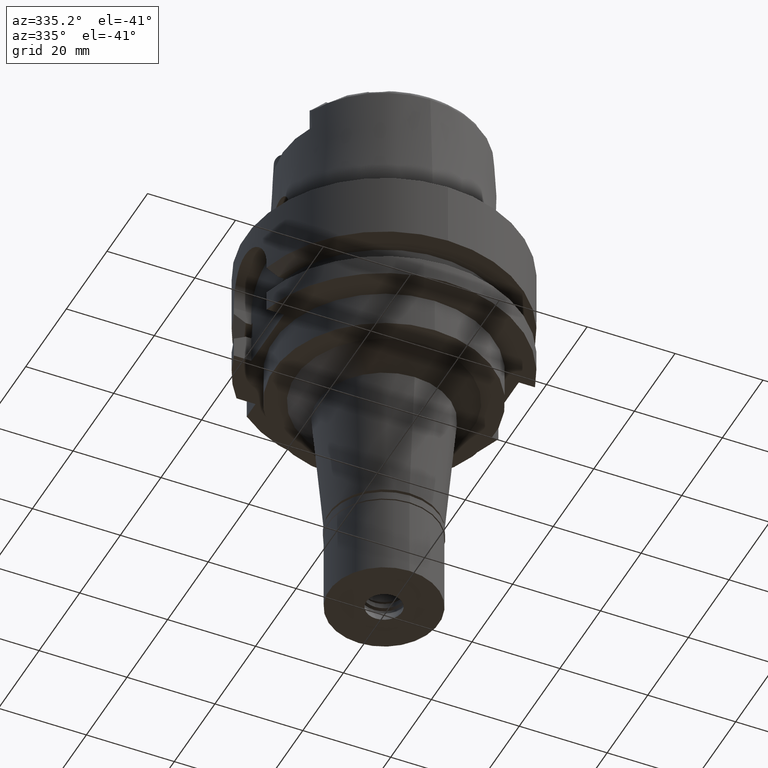
[diagram: clean part render]
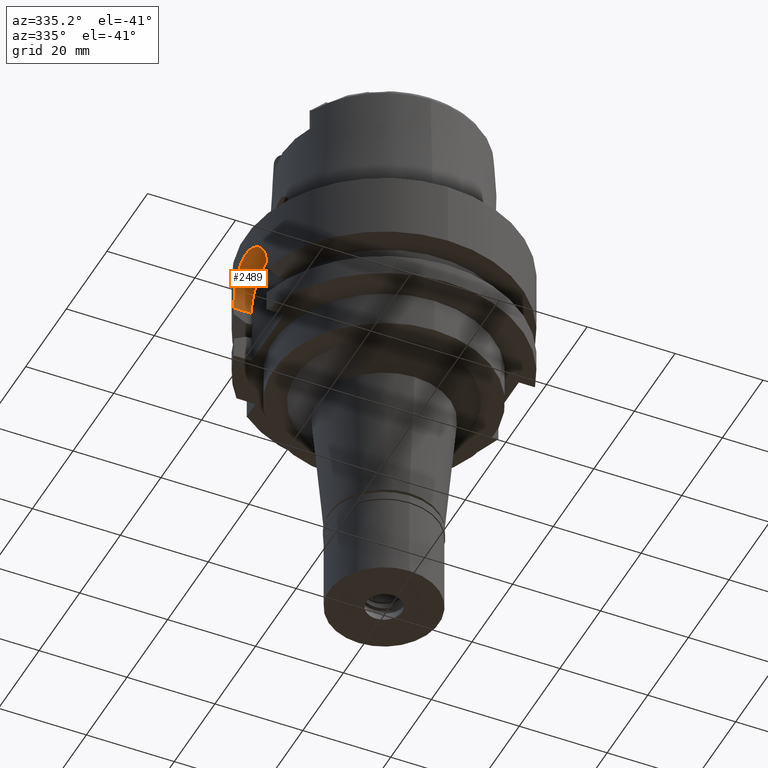
[diagram: same view with one face highlighted and labeled with its STEP entity id]
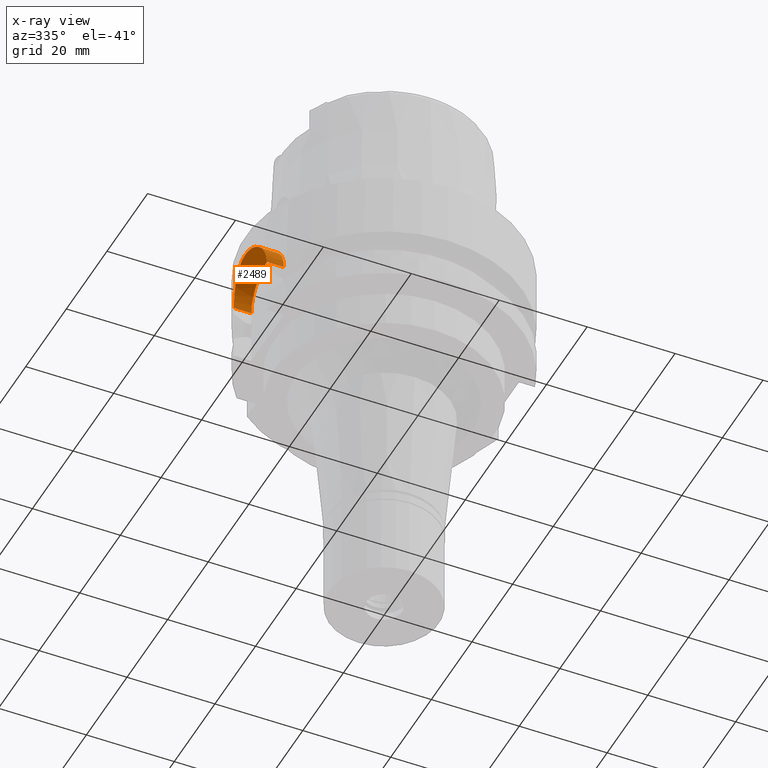
[diagram: x-ray of the same camera — body ghosted, the highlighted face saturated]
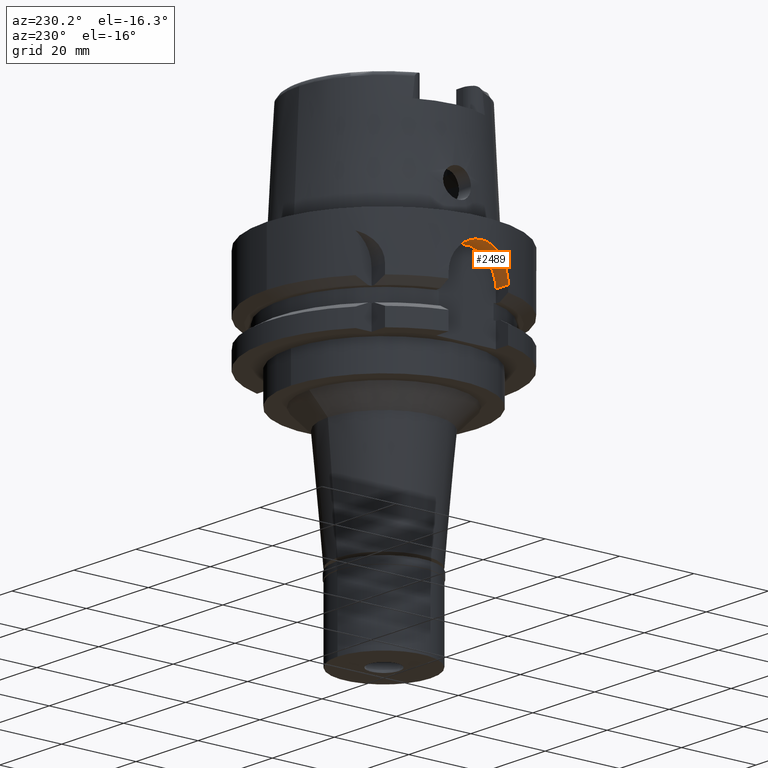
[diagram: same view with one face highlighted and labeled with its STEP entity id]
A machine part, auxiliary view. The second image highlights one B-rep face of the part: STEP entity #2489.
The next image is the same camera in x-ray: the body ghosted, the highlighted face saturated — about 0% of this face is hidden behind the body in this view.
A second angle (auxiliary view) of the same face is appended — the face is thin or edge-on in the first view.
In plain terms, the highlighted cylindrical surface (partial cylindrical patch) has radius 8 mm, axis along (1, 0, 0).
Its self-contained STEP definition (entity closure, byte-faithful):
#18 = DIRECTION ( 'NONE',  ( 0.0000000000000000000, 1.000000000000000000, 0.0000000000000000000 ) ) ;
#108 = CARTESIAN_POINT ( 'NONE',  ( -31.20241978222286505, -4.321057623402265513, -6.266097873782154437 ) ) ;
#138 = CARTESIAN_POINT ( 'NONE',  ( -31.26152885555568517, -3.870459631734697759, -5.997300790415237337 ) ) ;
#173 = DIRECTION ( 'NONE',  ( -1.000000000000000000, 8.776122650820999714E-14, 0.0000000000000000000 ) ) ;
#234 = CARTESIAN_POINT ( 'NONE',  ( -30.46719547316000032, -8.000000000000000000, -13.00000000000000000 ) ) ;
#369 = EDGE_CURVE ( 'NONE', #4057, #5040, #1305, .T. ) ;
#391 = VERTEX_POINT ( 'NONE', #1832 ) ;
#513 = CARTESIAN_POINT ( 'NONE',  ( -30.85175722333923787, 6.359895374914876776, -8.139646148475570442 ) ) ;
#534 = CARTESIAN_POINT ( 'NONE',  ( -31.02184408994428821, -5.471005329722204991, -7.157139608586096102 ) ) ;
#567 = CARTESIAN_POINT ( 'NONE',  ( -30.85032093071376735, -6.371617778921378594, -8.133432859172732066 ) ) ;
#615 = LINE ( 'NONE', #965, #5003 ) ;
#627 = CARTESIAN_POINT ( 'NONE',  ( -31.36478180881586297, -2.918134935663077911, -5.550077343907257266 ) ) ;
#639 = ORIENTED_EDGE ( 'NONE', *, *, #369, .T. ) ;
#655 = CARTESIAN_POINT ( 'NONE',  ( -30.46719547316000032, -8.000000000000000000, -13.00000000000000000 ) ) ;
#666 = LINE ( 'NONE', #234, #2584 ) ;
#795 = CARTESIAN_POINT ( 'NONE',  ( -26.50000000000000000, -8.000000000000000000, -13.00000000000000000 ) ) ;
#842 = CARTESIAN_POINT ( 'NONE',  ( -31.10597520402361837, 4.967801513785830458, -6.727898206207118648 ) ) ;
#919 = CARTESIAN_POINT ( 'NONE',  ( -30.59375341722014241, 7.502186701450398232, -10.20961224725754768 ) ) ;
#944 = AXIS2_PLACEMENT_3D ( 'NONE', #2185, #3915, #18 ) ;
#965 = CARTESIAN_POINT ( 'NONE',  ( -26.50000000000000000, 8.000000000000000000, -13.00000000000000000 ) ) ;
#977 = CARTESIAN_POINT ( 'NONE',  ( -30.91857264590933241, -6.036448109134066264, -7.723297038441890194 ) ) ;
#998 = CARTESIAN_POINT ( 'NONE',  ( -31.05571261456162802, -5.275953089349791902, -6.980406702709331945 ) ) ;
#1023 = CARTESIAN_POINT ( 'NONE',  ( -31.30329594184335562, -3.522533146456673148, -5.812390860449021979 ) ) ;
#1054 = CARTESIAN_POINT ( 'NONE',  ( -31.42616244446166363, -2.180633170701511858, -5.295127870797712077 ) ) ;
#1084 = CARTESIAN_POINT ( 'NONE',  ( -31.39751812986188995, 2.551139220147938147, -5.413139625041307745 ) ) ;
#1170 = CARTESIAN_POINT ( 'NONE',  ( -31.50000000000000000, 0.0000000000000000000, -13.00000000000000000 ) ) ;
#1242 = CARTESIAN_POINT ( 'NONE',  ( -30.46719547316000032, -8.000000000000000000, -13.00000000000000000 ) ) ;
#1264 = CARTESIAN_POINT ( 'NONE',  ( -31.02187907461123473, 5.470772986012664596, -7.156983136261470868 ) ) ;
#1305 = CIRCLE ( 'NONE', #944, 8.000000000000000000 ) ;
#1390 = CARTESIAN_POINT ( 'NONE',  ( -31.34136434296406293, 3.159692071397294022, -5.649299241991856846 ) ) ;
#1417 = CARTESIAN_POINT ( 'NONE',  ( -31.37578599807789459, -2.797363533052708906, -5.503890397323705663 ) ) ;
#1439 = CARTESIAN_POINT ( 'NONE',  ( -31.49677497998886011, -0.5190878658653258482, -5.012592346184607806 ) ) ;
#1464 = CARTESIAN_POINT ( 'NONE',  ( -31.48408220032492721, -1.033854126907863824, -5.062799230808712636 ) ) ;
#1524 = CYLINDRICAL_SURFACE ( 'NONE', #1589, 8.000000000000000000 ) ;
#1589 = AXIS2_PLACEMENT_3D ( 'NONE', #1170, #5537, #3254 ) ;
#1672 = VERTEX_POINT ( 'NONE', #1242 ) ;
#1765 = CARTESIAN_POINT ( 'NONE',  ( -30.49311703776987059, 7.900790839740991167, -11.71738137998058704 ) ) ;
#1821 = CARTESIAN_POINT ( 'NONE',  ( -31.15515489152438988, -4.653652403047093600, -6.487463098666814254 ) ) ;
#1832 = CARTESIAN_POINT ( 'NONE',  ( -30.46719547316000032, 8.000000000000000000, -13.00000000000000000 ) ) ;
#1845 = CARTESIAN_POINT ( 'NONE',  ( -30.57221970764632957, -7.589156868285306778, -10.45567407901943824 ) ) ;
#2185 = CARTESIAN_POINT ( 'NONE',  ( -26.50000000000000000, 0.0000000000000000000, -13.00000000000000000 ) ) ;
#2197 = CARTESIAN_POINT ( 'NONE',  ( -30.46719547316000032, 8.000000000000000000, -13.00000000000000000 ) ) ;
#2249 = CARTESIAN_POINT ( 'NONE',  ( -30.95339523289369410, 5.845824316600887194, -7.532364397224030839 ) ) ;
#2272 = CARTESIAN_POINT ( 'NONE',  ( -31.37653925857262394, 2.796761629658568449, -5.500262300789259484 ) ) ;
#2297 = CARTESIAN_POINT ( 'NONE',  ( -30.46719547316397936, -8.000000000001026734, -12.48317114868535960 ) ) ;
#2325 = CARTESIAN_POINT ( 'NONE',  ( -30.66829437905593636, -7.191777482552208056, -9.485901320401261216 ) ) ;
#2349 = EDGE_CURVE ( 'NONE', #391, #1672, #4008, .T. ) ;
#2352 = CARTESIAN_POINT ( 'NONE',  ( -30.64173940436828758, -7.303713858855887864, -9.725163879022156621 ) ) ;
#2489 = ADVANCED_FACE ( 'NONE', ( #5059 ), #1524, .F. ) ;
#2561 = CARTESIAN_POINT ( 'NONE',  ( -31.15505802711993155, 4.650159909552772142, -6.489012759518351992 ) ) ;
#2584 = VECTOR ( 'NONE', #5156, 1000.000000000000000 ) ;
#2615 = CARTESIAN_POINT ( 'NONE',  ( -30.47046940401123294, 7.987562577556149179, -12.48389669310026484 ) ) ;
#2636 = CARTESIAN_POINT ( 'NONE',  ( -30.66617645225338862, 7.202626994896539792, -9.478632443075117209 ) ) ;
#2666 = CARTESIAN_POINT ( 'NONE',  ( -30.72362744162693104, 6.956923324080014126, -9.014860810078568321 ) ) ;
#2691 = CARTESIAN_POINT ( 'NONE',  ( -26.50000000000000000, 8.000000000000000000, -13.00000000000000000 ) ) ;
#2718 = CARTESIAN_POINT ( 'NONE',  ( -30.75521152764449795, -6.810977723647230420, -8.795226243400080079 ) ) ;
#2771 = CARTESIAN_POINT ( 'NONE',  ( -31.50001432462713069, 0.5184477200075607861, -4.999946910804735190 ) ) ;
#2798 = CARTESIAN_POINT ( 'NONE',  ( -31.47467690226260473, -1.288642860898565612, -5.100161930338199312 ) ) ;
#2952 = ORIENTED_EDGE ( 'NONE', *, *, #5538, .F. ) ;
#2987 = CARTESIAN_POINT ( 'NONE',  ( -30.91893340381841426, 6.024844406121204976, -7.730123615628631484 ) ) ;
#2992 = EDGE_LOOP ( 'NONE', ( #3461, #639, #2952, #4452 ) ) ;
#3120 = CARTESIAN_POINT ( 'NONE',  ( -31.17125954396366438, 4.540361878075954039, -6.412027064724151515 ) ) ;
#3146 = CARTESIAN_POINT ( 'NONE',  ( -30.53478131667690221, -7.738413905107352164, -10.95404087153493045 ) ) ;
#3197 = CARTESIAN_POINT ( 'NONE',  ( -31.39671493540419789, -2.551760372409573652, -5.416713628348141185 ) ) ;
#3228 = CARTESIAN_POINT ( 'NONE',  ( -31.32926138261103688, -3.284444989566722484, -5.700584998822028737 ) ) ;
#3254 = DIRECTION ( 'NONE',  ( 0.0000000000000000000, 0.0000000000000000000, 1.000000000000000000 ) ) ;
#3461 = ORIENTED_EDGE ( 'NONE', *, *, #3812, .F. ) ;
#3493 = CARTESIAN_POINT ( 'NONE',  ( -30.51893368094428993, 7.800472392784304709, -11.20535269564873815 ) ) ;
#3544 = CARTESIAN_POINT ( 'NONE',  ( -31.24713635873541762, -3.984901092317275406, -6.061804289991594707 ) ) ;
#3573 = CARTESIAN_POINT ( 'NONE',  ( -30.51876128078908224, -7.801143990766280290, -11.20858996874534341 ) ) ;
#3600 = CARTESIAN_POINT ( 'NONE',  ( -31.48718090485648347, 1.033466574592188492, -5.050045388238338262 ) ) ;
#3625 = CARTESIAN_POINT ( 'NONE',  ( -31.44966231046914729, 1.798303139475056378, -5.200421182019739241 ) ) ;
#3655 = CARTESIAN_POINT ( 'NONE',  ( -30.59373675492767219, -7.502246412072072879, -10.20989868051688276 ) ) ;
#3812 = EDGE_CURVE ( 'NONE', #4057, #391, #615, .T. ) ;
#3915 = DIRECTION ( 'NONE',  ( 1.000000000000000000, 0.0000000000000000000, 0.0000000000000000000 ) ) ;
#3925 = CARTESIAN_POINT ( 'NONE',  ( -30.48347368812357061, 7.937788957678224122, -11.97101903903848452 ) ) ;
#4008 = B_SPLINE_CURVE_WITH_KNOTS ( 'NONE', 3,
 ( #2197, #4807, #2615, #3925, #1765, #3493, #5237, #4833, #919, #2636, #2666, #4424, #513, #2987, #2249, #1264, #4735, #842, #4310, #2561, #3120, #4942, #5360, #5312, #4865, #4969, #1390, #2272, #1084, #4010, #3625, #3600, #2771, #4531, #1439, #1464, #2798, #5337, #1054, #3197, #1417, #627, #3228, #1023, #138, #3544, #4888, #108, #1821, #4448, #998, #534, #977, #567, #2718, #4556, #2325, #2352, #3655, #1845, #3146, #3573, #4470, #2297, #655 ),
 .UNSPECIFIED., .F., .F.,
 ( 4, 2, 2, 2, 2, 2, 2, 2, 2, 2, 2, 2, 2, 2, 2, 2, 2, 2, 2, 1, 2, 2, 2, 2, 2, 2, 2, 2, 2, 2, 2, 2, 4 ),
 ( 0.0000000000000000000, 0.03125000000000001388, 0.06250000000000002776, 0.09375000000000004163, 0.1250000000000000555, 0.1875000000000000278, 0.2187500000000000278, 0.2499999999999999722, 0.2812499999999998890, 0.2968749999999998335, 0.3124999999999997780, 0.3437499999999997780, 0.3593749999999997224, 0.3749999999999996669, 0.4062499999999996114, 0.4374999999999995559, 0.4999999999999994449, 0.5312499999999993339, 0.5624999999999992228, 0.5937499999999991118, 0.6093749999999991118, 0.6249999999999991118, 0.6562499999999992228, 0.6718749999999992228, 0.6874999999999992228, 0.7187499999999992228, 0.7499999999999992228, 0.8124999999999992228, 0.8437499999999993339, 0.8749999999999994449, 0.9062499999999996669, 0.9374999999999997780, 1.000000000000000000 ),
 .UNSPECIFIED. ) ;
#4010 = CARTESIAN_POINT ( 'NONE',  ( -31.43404329783069073, 2.052651452557924916, -5.263364843652956537 ) ) ;
#4057 = VERTEX_POINT ( 'NONE', #2691 ) ;
#4310 = CARTESIAN_POINT ( 'NONE',  ( -31.12249084679541156, 4.863351863556406585, -6.646597155387997446 ) ) ;
#4424 = CARTESIAN_POINT ( 'NONE',  ( -30.81885635103454746, 6.516947870096321260, -8.352431642886058327 ) ) ;
#4448 = CARTESIAN_POINT ( 'NONE',  ( -31.12245664774484766, -4.866791469593102271, -6.645082546111228616 ) ) ;
#4452 = ORIENTED_EDGE ( 'NONE', *, *, #2349, .F. ) ;
#4470 = CARTESIAN_POINT ( 'NONE',  ( -30.48036049987612373, -7.950356879501090823, -11.97071503445736340 ) ) ;
#4531 = CARTESIAN_POINT ( 'NONE',  ( -31.49999281968113252, -0.2605282759328642062, -5.000027237282316683 ) ) ;
#4556 = CARTESIAN_POINT ( 'NONE',  ( -30.72496427306851530, -6.945683112382950775, -9.021600376697293200 ) ) ;
#4735 = CARTESIAN_POINT ( 'NONE',  ( -31.05592143672184591, 5.274725093403577425, -6.979327917317402097 ) ) ;
#4807 = CARTESIAN_POINT ( 'NONE',  ( -30.46719547316397581, 8.000000000001037392, -12.74141073774381283 ) ) ;
#4833 = CARTESIAN_POINT ( 'NONE',  ( -30.57233718637446884, 7.588684288689725221, -10.45425605569719174 ) ) ;
#4865 = CARTESIAN_POINT ( 'NONE',  ( -31.30298911224988601, 3.519547482586904863, -5.814547616578758849 ) ) ;
#4888 = CARTESIAN_POINT ( 'NONE',  ( -31.21750876316688661, -4.210714186281836469, -6.196545001652887130 ) ) ;
#4942 = CARTESIAN_POINT ( 'NONE',  ( -31.21807093783880660, 4.210852299023346568, -6.192810637456556577 ) ) ;
#4969 = CARTESIAN_POINT ( 'NONE',  ( -31.32884523643254226, 3.281432308531917919, -5.702786093823632996 ) ) ;
#5003 = VECTOR ( 'NONE', #173, 1000.000000000000000 ) ;
#5040 = VERTEX_POINT ( 'NONE', #795 ) ;
#5059 = FACE_OUTER_BOUND ( 'NONE', #2992, .T. ) ;
#5156 = DIRECTION ( 'NONE',  ( 1.000000000000000000, 8.686570378873998593E-14, 0.0000000000000000000 ) ) ;
#5237 = CARTESIAN_POINT ( 'NONE',  ( -30.53486776371382305, 7.738073463291178733, -10.95272763079205625 ) ) ;
#5312 = CARTESIAN_POINT ( 'NONE',  ( -31.28954085692742382, 3.637070170602349162, -5.873293608130482291 ) ) ;
#5337 = CARTESIAN_POINT ( 'NONE',  ( -31.44949716578619814, -1.801392390339643379, -5.201080300986020255 ) ) ;
#5360 = CARTESIAN_POINT ( 'NONE',  ( -31.24778611378244264, 3.985028085241764995, -6.058127273308139493 ) ) ;
#5537 = DIRECTION ( 'NONE',  ( 1.000000000000000000, 0.0000000000000000000, 0.0000000000000000000 ) ) ;
#5538 = EDGE_CURVE ( 'NONE', #1672, #5040, #666, .T. ) ;